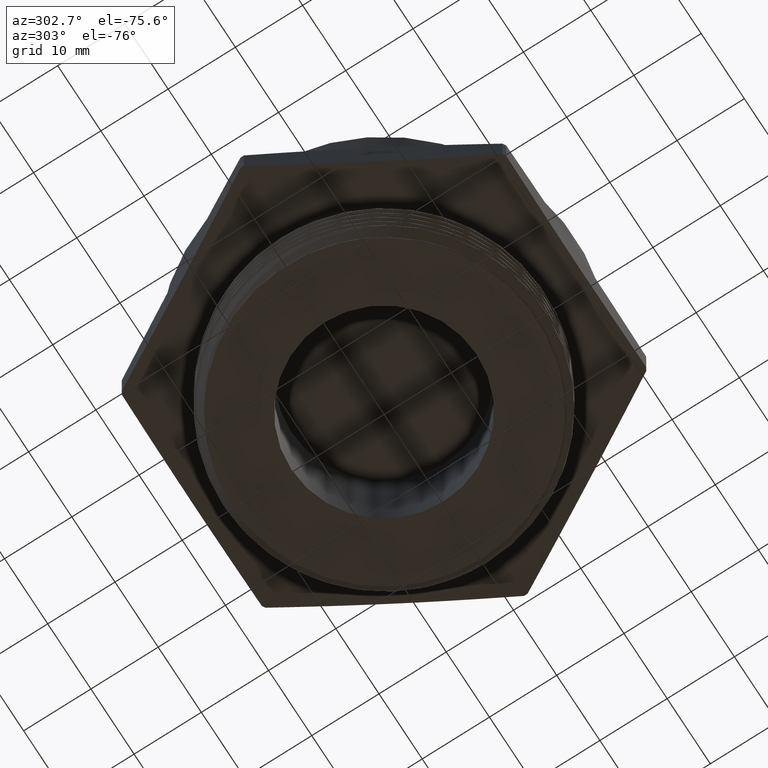
[diagram: clean part render]
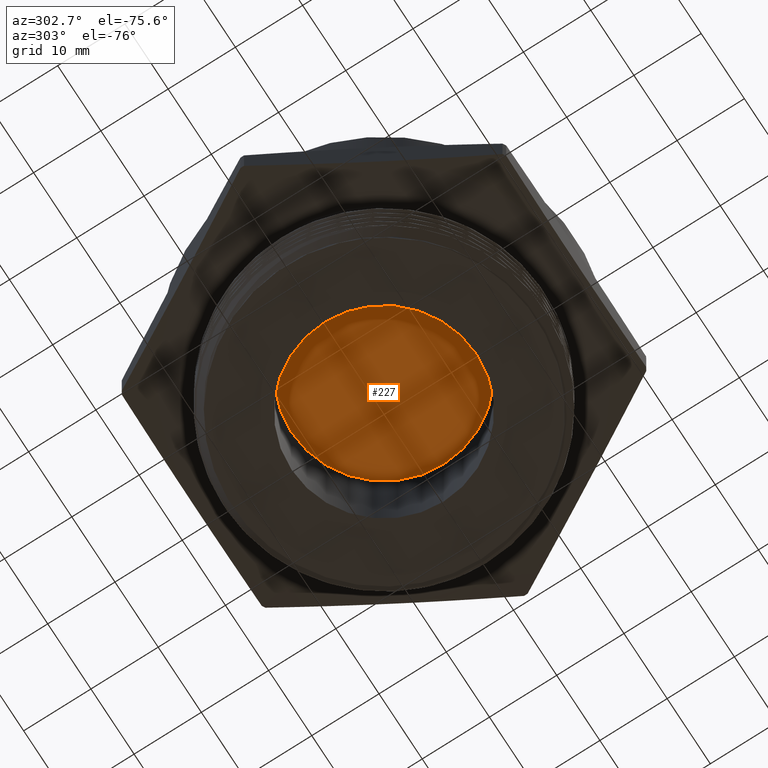
[diagram: same view with one face highlighted and labeled with its STEP entity id]
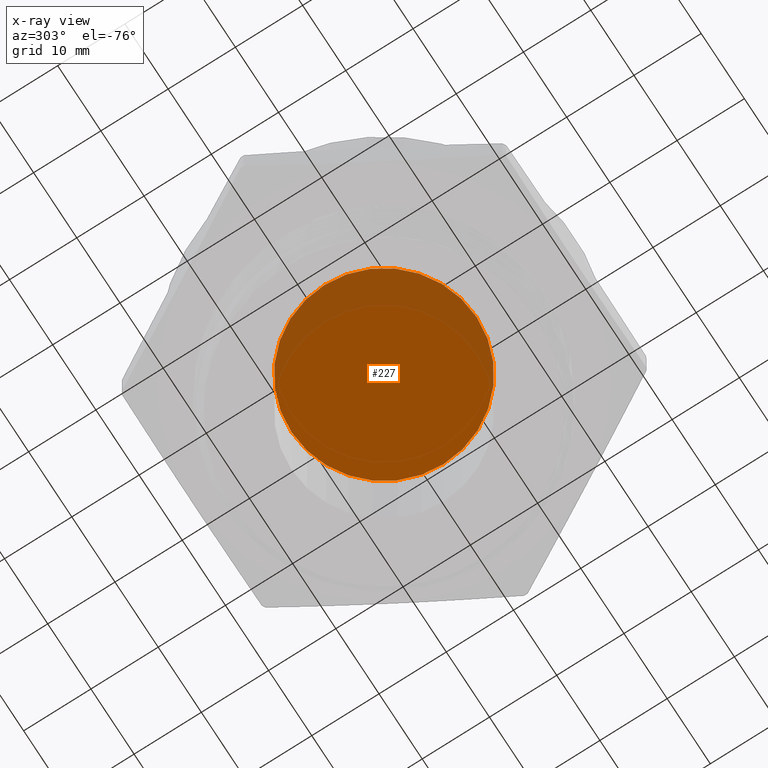
[diagram: x-ray of the same camera — body ghosted, the highlighted face saturated]
A machine part, auxiliary view. The second image highlights one B-rep face of the part: STEP entity #227.
The next image is the same camera in x-ray: the body ghosted, the highlighted face saturated — about 22% of this face is hidden behind the body in this view.
In plain terms, the highlighted planar face has unit normal (0, 0, 1).
Its self-contained STEP definition (entity closure, byte-faithful):
#117 = VERTEX_POINT ( 'NONE', #2735 ) ;
#227 = ADVANCED_FACE ( 'NONE', ( #298 ), #2719, .F. ) ;
#298 = FACE_OUTER_BOUND ( 'NONE', #1678, .T. ) ;
#359 = AXIS2_PLACEMENT_3D ( 'NONE', #2717, #2714, #2713 ) ;
#433 = AXIS2_PLACEMENT_3D ( 'NONE', #2049, #2050, #2051 ) ;
#435 = AXIS2_PLACEMENT_3D ( 'NONE', #2057, #2058, #2059 ) ;
#571 = CIRCLE ( 'NONE', #433, 0.5420000000000000400 ) ;
#585 = CIRCLE ( 'NONE', #435, 0.5420000000000000400 ) ;
#747 = EDGE_CURVE ( 'NONE', #2432, #117, #571, .T. ) ;
#750 = EDGE_CURVE ( 'NONE', #117, #2432, #585, .T. ) ;
#1678 = EDGE_LOOP ( 'NONE', ( #1725, #1726 ) ) ;
#1725 = ORIENTED_EDGE ( 'NONE', *, *, #747, .F. ) ;
#1726 = ORIENTED_EDGE ( 'NONE', *, *, #750, .F. ) ;
#2049 = CARTESIAN_POINT ( 'NONE',  ( 0.0000000000000000000, 0.0000000000000000000, 0.1600000000000000000 ) ) ;
#2050 = DIRECTION ( 'NONE',  ( 0.0000000000000000000, 0.0000000000000000000, 1.000000000000000000 ) ) ;
#2051 = DIRECTION ( 'NONE',  ( 1.000000000000000000, 0.0000000000000000000, 0.0000000000000000000 ) ) ;
#2057 = CARTESIAN_POINT ( 'NONE',  ( 0.0000000000000000000, 0.0000000000000000000, 0.1600000000000000000 ) ) ;
#2058 = DIRECTION ( 'NONE',  ( 0.0000000000000000000, 0.0000000000000000000, 1.000000000000000000 ) ) ;
#2059 = DIRECTION ( 'NONE',  ( 1.000000000000000000, 0.0000000000000000000, 0.0000000000000000000 ) ) ;
#2061 = CARTESIAN_POINT ( 'NONE',  ( 0.5420000000000000400, 0.0000000000000000000, 0.1600000000000000000 ) ) ;
#2432 = VERTEX_POINT ( 'NONE', #2061 ) ;
#2713 = DIRECTION ( 'NONE',  ( 1.000000000000000000, 0.0000000000000000000, -0.0000000000000000000 ) ) ;
#2714 = DIRECTION ( 'NONE',  ( 0.0000000000000000000, 0.0000000000000000000, 1.000000000000000000 ) ) ;
#2717 = CARTESIAN_POINT ( 'NONE',  ( 0.0000000000000000000, 0.0000000000000000000, 0.1600000000000000000 ) ) ;
#2719 = PLANE ( 'NONE',  #359 ) ;
#2735 = CARTESIAN_POINT ( 'NONE',  ( -0.5420000000000000400, 6.637585651378654500E-017, 0.1600000000000000000 ) ) ;